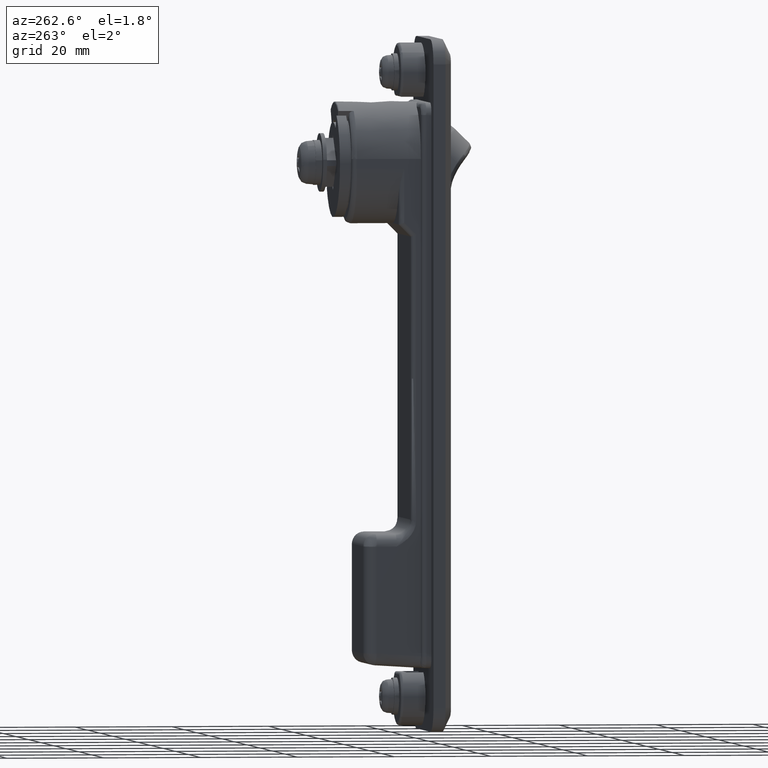
[diagram: clean part render]
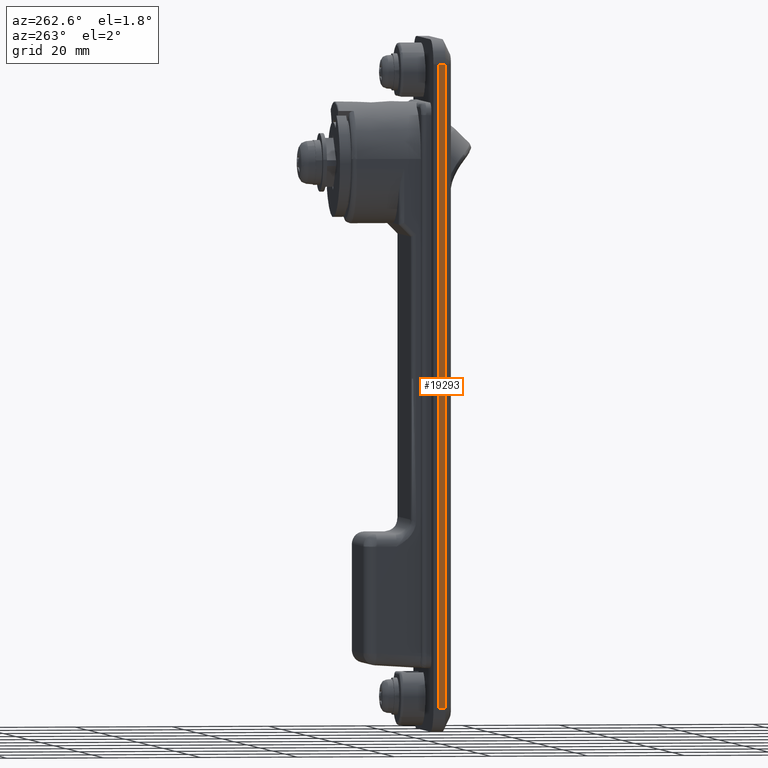
[diagram: same view with one face highlighted and labeled with its STEP entity id]
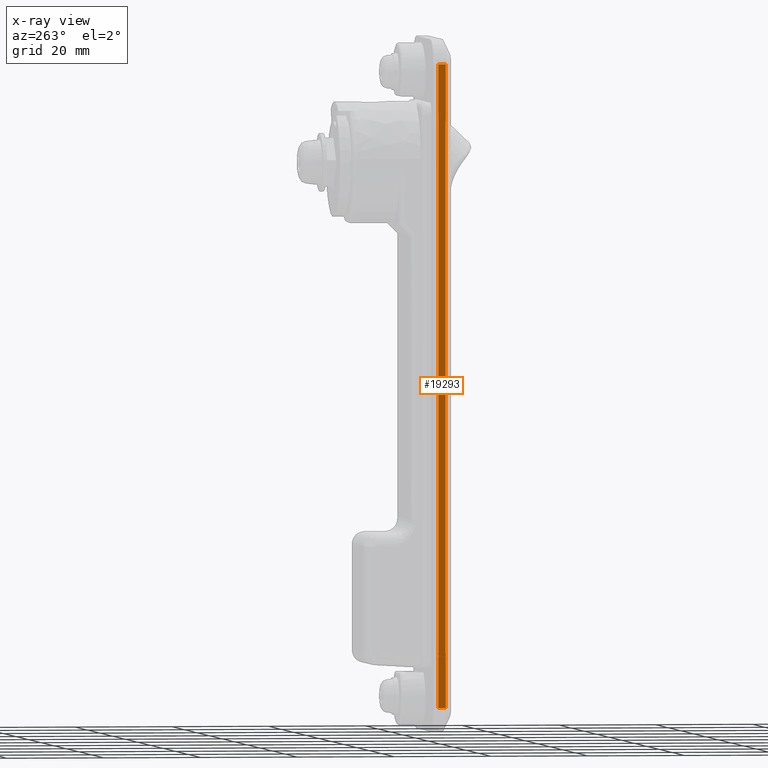
[diagram: x-ray of the same camera — body ghosted, the highlighted face saturated]
A machine part, auxiliary view. The second image highlights one B-rep face of the part: STEP entity #19293.
The next image is the same camera in x-ray: the body ghosted, the highlighted face saturated — about 0% of this face is hidden behind the body in this view.
In plain terms, the highlighted face is a freeform B-spline surface patch.
Its self-contained STEP definition (entity closure, byte-faithful):
#19027=CARTESIAN_POINT('',(-1.499999999999946,16.0,20.500000000000000));
#19028=VERTEX_POINT('',#19027);
#19099=CARTESIAN_POINT('',(-1.499999999999946,16.0,-111.500000000000000));
#19100=VERTEX_POINT('',#19099);
#19114=CARTESIAN_POINT('',(-1.499999999999946,16.0,-111.500000000000000));
#19115=CARTESIAN_POINT('',(-1.499999999999946,16.0,20.500000000000000));
#19116=QUASI_UNIFORM_CURVE('',1,(#19114,#19115),.UNSPECIFIED.,.F.,.U.);
#19117=EDGE_CURVE('',#19100,#19028,#19116,.T.);
#19241=CARTESIAN_POINT('',(0.0,16.0,20.500000000000000));
#19242=VERTEX_POINT('',#19241);
#19243=CARTESIAN_POINT('',(-1.499999999999946,16.0,20.500000000000000));
#19244=CARTESIAN_POINT('',(0.0,16.0,20.500000000000000));
#19245=QUASI_UNIFORM_CURVE('',1,(#19243,#19244),.UNSPECIFIED.,.F.,.U.);
#19246=EDGE_CURVE('',#19028,#19242,#19245,.T.);
#19272=CARTESIAN_POINT('',(-1.574924997092652,16.0,-118.093399744158400));
#19273=CARTESIAN_POINT('',(-1.574924997092652,16.0,27.093403284674292));
#19274=CARTESIAN_POINT('',(0.074925037325841,16.0,-118.093399744158400));
#19275=CARTESIAN_POINT('',(0.074925037325841,16.0,27.093403284674292));
#19276=B_SPLINE_SURFACE_WITH_KNOTS('',1,1,((#19272,#19274),(#19273,#19275)),.UNSPECIFIED.,.F.,.F.,.U.,(2,2),(2,2),(0.0,145.186803028832710),(0.041708334948495,0.958291687403247),.UNSPECIFIED.);
#19277=CARTESIAN_POINT('',(0.0,16.0,-111.500000000000000));
#19278=VERTEX_POINT('',#19277);
#19279=CARTESIAN_POINT('',(-1.499999999999946,16.0,-111.500000000000000));
#19280=CARTESIAN_POINT('',(0.0,16.0,-111.500000000000000));
#19281=QUASI_UNIFORM_CURVE('',1,(#19279,#19280),.UNSPECIFIED.,.F.,.U.);
#19282=EDGE_CURVE('',#19100,#19278,#19281,.T.);
#19283=ORIENTED_EDGE('',*,*,#19282,.F.);
#19284=ORIENTED_EDGE('',*,*,#19117,.T.);
#19285=ORIENTED_EDGE('',*,*,#19246,.T.);
#19286=CARTESIAN_POINT('',(0.0,16.0,-111.500000000000000));
#19287=CARTESIAN_POINT('',(0.0,16.0,20.500000000000000));
#19288=QUASI_UNIFORM_CURVE('',1,(#19286,#19287),.UNSPECIFIED.,.F.,.U.);
#19289=EDGE_CURVE('',#19278,#19242,#19288,.T.);
#19290=ORIENTED_EDGE('',*,*,#19289,.F.);
#19291=EDGE_LOOP('',(#19283,#19284,#19285,#19290));
#19292=FACE_OUTER_BOUND('',#19291,.T.);
#19293=ADVANCED_FACE('',(#19292),#19276,.T.);